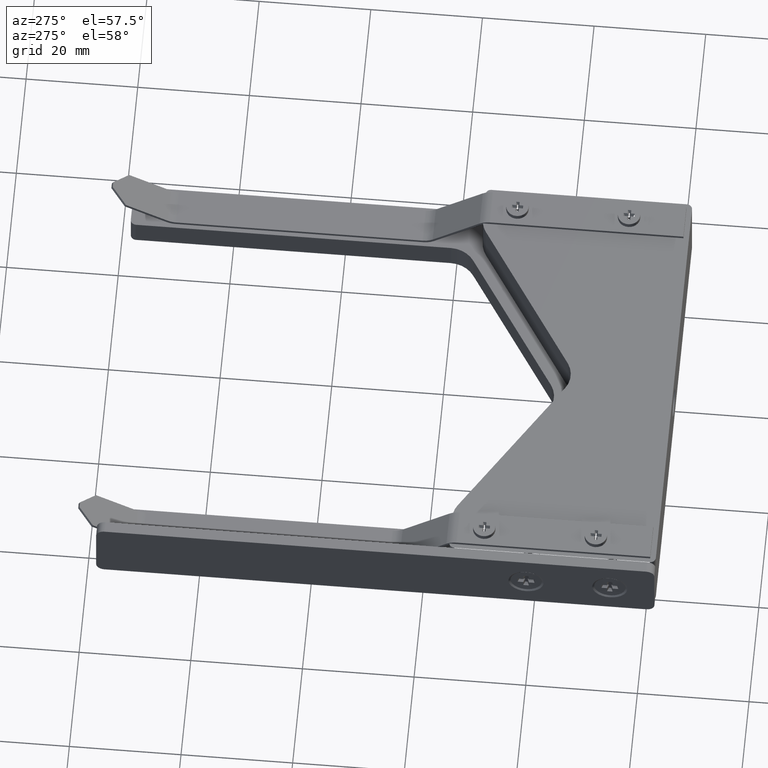
[diagram: clean part render]
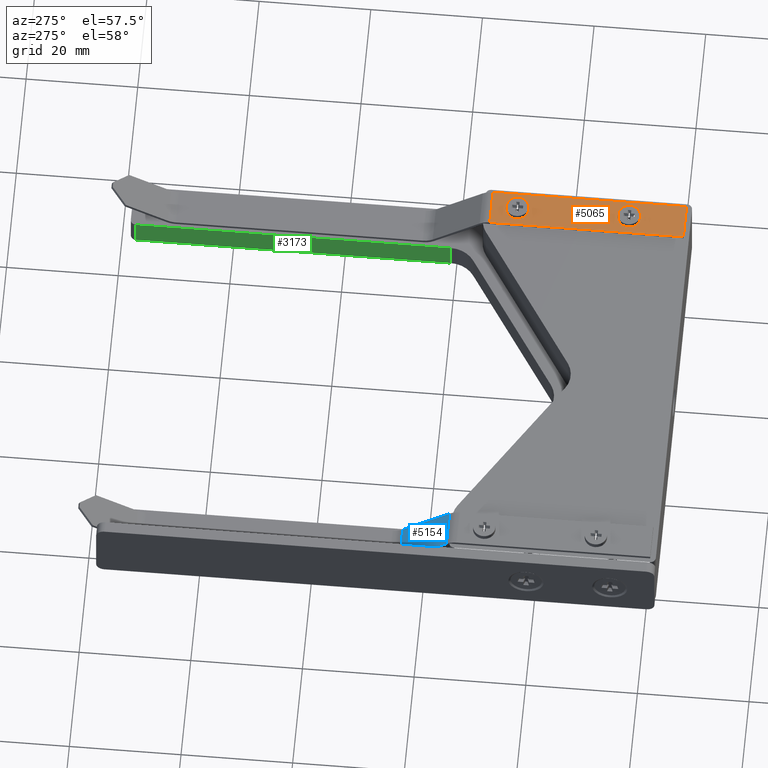
[diagram: same view with three faces highlighted in distinct colors, each labeled with its STEP entity id]
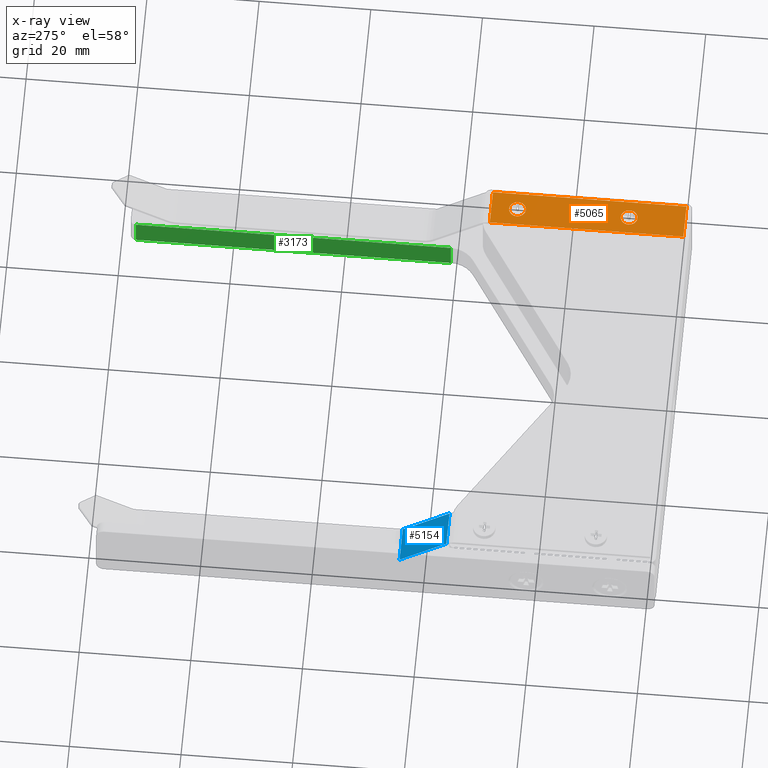
[diagram: x-ray of the same camera — body ghosted, the three highlighted faces saturated]
A machine part, auxiliary view with three faces highlighted in distinct colors.
The next image is the same camera in x-ray (body ghosted, the three faces saturated) — at least one of them is partly hidden behind the body in this view.
Their STEP definitions:

[orange] entity #5065 — the highlighted planar face has unit normal (0, 0, -1).
#24 = CARTESIAN_POINT ( 'NONE',  ( 10.57269647561043900, -10.59921972408116300, 13.19999999999763500 ) ) ;
#25 = DIRECTION ( 'NONE',  ( 0.0000000000000000000, 0.0000000000000000000, 1.000000000000000000 ) ) ;
#26 = DIRECTION ( 'NONE',  ( 1.000000000000000000, 0.0000000000000000000, 0.0000000000000000000 ) ) ;
#27 = DIRECTION ( 'NONE',  ( -1.000000000000000000, -0.0000000000000000000, -0.0000000000000000000 ) ) ;
#459 = DIRECTION ( 'NONE',  ( 0.0000000000000000000, 0.0000000000000000000, -1.000000000000000000 ) ) ;
#462 = CARTESIAN_POINT ( 'NONE',  ( 13.77269647561044000, -40.59921972408115900, 13.19999999999763500 ) ) ;
#464 = PLANE ( 'NONE',  #4134 ) ;
#466 = DIRECTION ( 'NONE',  ( -1.000000000000000000, 0.0000000000000000000, -0.0000000000000000000 ) ) ;
#557 = VERTEX_POINT ( 'NONE', #3885 ) ;
#558 = VERTEX_POINT ( 'NONE', #3884 ) ;
#714 = FACE_BOUND ( 'NONE', #2928, .T. ) ;
#719 = FACE_OUTER_BOUND ( 'NONE', #5248, .T. ) ;
#726 = FACE_BOUND ( 'NONE', #5251, .T. ) ;
#985 = VECTOR ( 'NONE', #27, 1000.000000000000000 ) ;
#987 = CIRCLE ( 'NONE', #1719, 1.500000000000001300 ) ;
#989 = LINE ( 'NONE', #4581, #985 ) ;
#990 = VECTOR ( 'NONE', #4584, 1000.000000000000000 ) ;
#991 = CIRCLE ( 'NONE', #1718, 1.499999999999999600 ) ;
#992 = VECTOR ( 'NONE', #4582, 1000.000000000000000 ) ;
#993 = LINE ( 'NONE', #4583, #990 ) ;
#994 = VECTOR ( 'NONE', #4573, 1000.000000000000000 ) ;
#996 = LINE ( 'NONE', #4572, #994 ) ;
#1005 = LINE ( 'NONE', #4577, #992 ) ;
#1718 = AXIS2_PLACEMENT_3D ( 'NONE', #4585, #4586, #4587 ) ;
#1719 = AXIS2_PLACEMENT_3D ( 'NONE', #24, #25, #26 ) ;
#2420 = ORIENTED_EDGE ( 'NONE', *, *, #4476, .F. ) ;
#2421 = ORIENTED_EDGE ( 'NONE', *, *, #4466, .T. ) ;
#2422 = ORIENTED_EDGE ( 'NONE', *, *, #4468, .T. ) ;
#2423 = ORIENTED_EDGE ( 'NONE', *, *, #4470, .F. ) ;
#2424 = ORIENTED_EDGE ( 'NONE', *, *, #4472, .F. ) ;
#2425 = ORIENTED_EDGE ( 'NONE', *, *, #4475, .F. ) ;
#2545 = VERTEX_POINT ( 'NONE', #4759 ) ;
#2561 = VERTEX_POINT ( 'NONE', #4775 ) ;
#2585 = VERTEX_POINT ( 'NONE', #4799 ) ;
#2588 = VERTEX_POINT ( 'NONE', #4802 ) ;
#2928 = EDGE_LOOP ( 'NONE', ( #2424 ) ) ;
#3884 = CARTESIAN_POINT ( 'NONE',  ( 12.07269647561043900, -30.59921972408115900, 13.19999999999763500 ) ) ;
#3885 = CARTESIAN_POINT ( 'NONE',  ( 12.07269647561044000, -10.59921972408116300, 13.19999999999763500 ) ) ;
#4134 = AXIS2_PLACEMENT_3D ( 'NONE', #462, #459, #466 ) ;
#4466 = EDGE_CURVE ( 'NONE', #2561, #2588, #996, .T. ) ;
#4468 = EDGE_CURVE ( 'NONE', #2585, #2561, #1005, .T. ) ;
#4470 = EDGE_CURVE ( 'NONE', #2585, #2545, #993, .T. ) ;
#4472 = EDGE_CURVE ( 'NONE', #558, #558, #991, .T. ) ;
#4475 = EDGE_CURVE ( 'NONE', #557, #557, #987, .T. ) ;
#4476 = EDGE_CURVE ( 'NONE', #2545, #2588, #989, .T. ) ;
#4572 = CARTESIAN_POINT ( 'NONE',  ( 7.372696475610439400, -40.59921972408115900, 13.19999999999763500 ) ) ;
#4573 = DIRECTION ( 'NONE',  ( -0.0000000000000000000, -1.000000000000000000, -0.0000000000000000000 ) ) ;
#4577 = CARTESIAN_POINT ( 'NONE',  ( 13.77269647561044000, -5.920394096413573900, 13.19999999999763500 ) ) ;
#4581 = CARTESIAN_POINT ( 'NONE',  ( 13.77269647561044000, -40.59921972408115900, 13.19999999999763500 ) ) ;
#4582 = DIRECTION ( 'NONE',  ( -1.000000000000000000, 0.0000000000000000000, 0.0000000000000000000 ) ) ;
#4583 = CARTESIAN_POINT ( 'NONE',  ( 13.77269647561044000, -40.59921972408115900, 13.19999999999763500 ) ) ;
#4584 = DIRECTION ( 'NONE',  ( -0.0000000000000000000, -1.000000000000000000, -0.0000000000000000000 ) ) ;
#4585 = CARTESIAN_POINT ( 'NONE',  ( 10.57269647561043900, -30.59921972408115900, 13.19999999999763500 ) ) ;
#4586 = DIRECTION ( 'NONE',  ( 0.0000000000000000000, 0.0000000000000000000, 1.000000000000000000 ) ) ;
#4587 = DIRECTION ( 'NONE',  ( 1.000000000000000000, 0.0000000000000000000, 0.0000000000000000000 ) ) ;
#4759 = CARTESIAN_POINT ( 'NONE',  ( 13.77269647561044000, -40.59921972408115900, 13.19999999999763500 ) ) ;
#4775 = CARTESIAN_POINT ( 'NONE',  ( 7.372696475610439400, -5.920394096413588200, 13.19999999999763500 ) ) ;
#4799 = CARTESIAN_POINT ( 'NONE',  ( 13.77269647561044000, -5.920394096413588200, 13.19999999999763500 ) ) ;
#4802 = CARTESIAN_POINT ( 'NONE',  ( 7.372696475610439400, -40.59921972408115900, 13.19999999999763500 ) ) ;
#5065 = ADVANCED_FACE ( 'NONE', ( #726, #714, #719 ), #464, .F. ) ;
#5248 = EDGE_LOOP ( 'NONE', ( #2423, #2422, #2421, #2420 ) ) ;
#5251 = EDGE_LOOP ( 'NONE', ( #2425 ) ) ;

[blue] entity #5154 — the highlighted planar face has unit normal (0, -0.6101, -0.7923).
#353 = CARTESIAN_POINT ( 'NONE',  ( -60.62730352438956800, -4.899219724081159000, 13.19999999999763300 ) ) ;
#354 = DIRECTION ( 'NONE',  ( -0.0000000000000000000, -0.7923293503873346500, 0.6100935997982475100 ) ) ;
#358 = DIRECTION ( 'NONE',  ( 1.000000000000000000, -0.0000000000000000000, -0.0000000000000000000 ) ) ;
#359 = CARTESIAN_POINT ( 'NONE',  ( -60.62730352438956800, 4.291673848856508900, 6.123011948835631400 ) ) ;
#363 = CARTESIAN_POINT ( 'NONE',  ( -54.22730352438956200, -4.090113297018832300, 12.57698805115964200 ) ) ;
#364 = DIRECTION ( 'NONE',  ( -1.000000000000000000, 0.0000000000000000000, 0.0000000000000000000 ) ) ;
#365 = CARTESIAN_POINT ( 'NONE',  ( -54.22730352438956200, -4.899219724081159000, 13.19999999999763300 ) ) ;
#366 = DIRECTION ( 'NONE',  ( -0.0000000000000000000, -0.7923293503873346500, 0.6100935997982475100 ) ) ;
#593 = FACE_OUTER_BOUND ( 'NONE', #5292, .T. ) ;
#761 = VECTOR ( 'NONE', #358, 1000.000000000000000 ) ;
#763 = LINE ( 'NONE', #363, #761 ) ;
#764 = VECTOR ( 'NONE', #366, 1000.000000000000000 ) ;
#766 = VECTOR ( 'NONE', #364, 1000.000000000000000 ) ;
#767 = LINE ( 'NONE', #365, #764 ) ;
#768 = VECTOR ( 'NONE', #354, 1000.000000000000000 ) ;
#770 = LINE ( 'NONE', #353, #768 ) ;
#779 = LINE ( 'NONE', #359, #766 ) ;
#2269 = ORIENTED_EDGE ( 'NONE', *, *, #5037, .T. ) ;
#2270 = ORIENTED_EDGE ( 'NONE', *, *, #5033, .T. ) ;
#2271 = ORIENTED_EDGE ( 'NONE', *, *, #5034, .T. ) ;
#2272 = ORIENTED_EDGE ( 'NONE', *, *, #5035, .F. ) ;
#2755 = VERTEX_POINT ( 'NONE', #4857 ) ;
#2772 = VERTEX_POINT ( 'NONE', #4874 ) ;
#2783 = VERTEX_POINT ( 'NONE', #4885 ) ;
#2784 = VERTEX_POINT ( 'NONE', #4886 ) ;
#3802 = CARTESIAN_POINT ( 'NONE',  ( -54.22730352438956200, -4.899219724081159000, 13.19999999999763300 ) ) ;
#3808 = PLANE ( 'NONE',  #4740 ) ;
#3811 = DIRECTION ( 'NONE',  ( 0.0000000000000000000, -0.6100935997982475100, -0.7923293503873346500 ) ) ;
#3812 = DIRECTION ( 'NONE',  ( 0.0000000000000000000, 0.7923293503873346500, -0.6100935997982475100 ) ) ;
#4740 = AXIS2_PLACEMENT_3D ( 'NONE', #3802, #3811, #3812 ) ;
#4857 = CARTESIAN_POINT ( 'NONE',  ( -60.62730352438956800, 4.291673848856508900, 6.123011948835632300 ) ) ;
#4874 = CARTESIAN_POINT ( 'NONE',  ( -60.62730352438956800, -4.090113297018832300, 12.57698805115964200 ) ) ;
#4885 = CARTESIAN_POINT ( 'NONE',  ( -54.22730352438956200, -4.090113297018832300, 12.57698805115964200 ) ) ;
#4886 = CARTESIAN_POINT ( 'NONE',  ( -54.22730352438956200, 4.291673848856508900, 6.123011948835632300 ) ) ;
#5033 = EDGE_CURVE ( 'NONE', #2755, #2772, #770, .T. ) ;
#5034 = EDGE_CURVE ( 'NONE', #2784, #2755, #779, .T. ) ;
#5035 = EDGE_CURVE ( 'NONE', #2784, #2783, #767, .T. ) ;
#5037 = EDGE_CURVE ( 'NONE', #2772, #2783, #763, .T. ) ;
#5154 = ADVANCED_FACE ( 'NONE', ( #593 ), #3808, .F. ) ;
#5292 = EDGE_LOOP ( 'NONE', ( #2272, #2271, #2270, #2269 ) ) ;

[green] entity #3173 — the highlighted planar face has unit normal (1, 0, -0).
#1065 = VECTOR ( 'NONE', #4460, 1000.000000000000000 ) ;
#1067 = LINE ( 'NONE', #4010, #1065 ) ;
#1074 = VECTOR ( 'NONE', #3136, 1000.000000000000000 ) ;
#1076 = LINE ( 'NONE', #3123, #1074 ) ;
#1083 = VECTOR ( 'NONE', #3124, 1000.000000000000000 ) ;
#1086 = LINE ( 'NONE', #3122, #1083 ) ;
#1149 = VECTOR ( 'NONE', #4009, 1000.000000000000000 ) ;
#1152 = LINE ( 'NONE', #4008, #1149 ) ;
#1653 = FACE_OUTER_BOUND ( 'NONE', #2919, .T. ) ;
#1671 = AXIS2_PLACEMENT_3D ( 'NONE', #4691, #4695, #4696 ) ;
#2569 = VERTEX_POINT ( 'NONE', #4783 ) ;
#2570 = VERTEX_POINT ( 'NONE', #4784 ) ;
#2582 = VERTEX_POINT ( 'NONE', #4796 ) ;
#2584 = VERTEX_POINT ( 'NONE', #4798 ) ;
#2878 = ORIENTED_EDGE ( 'NONE', *, *, #4410, .T. ) ;
#2879 = ORIENTED_EDGE ( 'NONE', *, *, #4370, .F. ) ;
#2880 = ORIENTED_EDGE ( 'NONE', *, *, #4421, .F. ) ;
#2881 = ORIENTED_EDGE ( 'NONE', *, *, #4416, .T. ) ;
#2919 = EDGE_LOOP ( 'NONE', ( #2881, #2880, #2879, #2878 ) ) ;
#3122 = CARTESIAN_POINT ( 'NONE',  ( 6.572696475610321400, 57.40078027591884100, 4.999999999997634800 ) ) ;
#3123 = CARTESIAN_POINT ( 'NONE',  ( 6.572696475610321400, -4.591615161343519900, -2.365295459494376500E-012 ) ) ;
#3124 = DIRECTION ( 'NONE',  ( -0.0000000000000000000, -0.0000000000000000000, -1.000000000000000000 ) ) ;
#3136 = DIRECTION ( 'NONE',  ( 0.0000000000000000000, -1.000000000000000000, 0.0000000000000000000 ) ) ;
#3173 = ADVANCED_FACE ( 'NONE', ( #1653 ), #4693, .F. ) ;
#4008 = CARTESIAN_POINT ( 'NONE',  ( 6.572696475610321400, -4.591615161343519900, 4.999999999997634800 ) ) ;
#4009 = DIRECTION ( 'NONE',  ( 0.0000000000000000000, -1.000000000000000000, 0.0000000000000000000 ) ) ;
#4010 = CARTESIAN_POINT ( 'NONE',  ( 6.572696475610321400, 0.9934047087201987000, 4.999999999997634800 ) ) ;
#4370 = EDGE_CURVE ( 'NONE', #2569, #2570, #1152, .T. ) ;
#4410 = EDGE_CURVE ( 'NONE', #2569, #2584, #1086, .T. ) ;
#4416 = EDGE_CURVE ( 'NONE', #2584, #2582, #1076, .T. ) ;
#4421 = EDGE_CURVE ( 'NONE', #2570, #2582, #1067, .T. ) ;
#4460 = DIRECTION ( 'NONE',  ( -0.0000000000000000000, -0.0000000000000000000, -1.000000000000000000 ) ) ;
#4691 = CARTESIAN_POINT ( 'NONE',  ( 6.572696475610321400, -4.591615161343519900, 4.999999999997634800 ) ) ;
#4693 = PLANE ( 'NONE',  #1671 ) ;
#4695 = DIRECTION ( 'NONE',  ( 1.000000000000000000, 0.0000000000000000000, -0.0000000000000000000 ) ) ;
#4696 = DIRECTION ( 'NONE',  ( -0.0000000000000000000, 0.0000000000000000000, -1.000000000000000000 ) ) ;
#4783 = CARTESIAN_POINT ( 'NONE',  ( 6.572696475610321400, 57.40078027591884100, 4.999999999997634800 ) ) ;
#4784 = CARTESIAN_POINT ( 'NONE',  ( 6.572696475610321400, 0.9934047087201987000, 4.999999999997634800 ) ) ;
#4796 = CARTESIAN_POINT ( 'NONE',  ( 6.572696475610321400, 0.9934047087201987000, -2.365295459494376500E-012 ) ) ;
#4798 = CARTESIAN_POINT ( 'NONE',  ( 6.572696475610321400, 57.40078027591884100, -2.365295459494376500E-012 ) ) ;